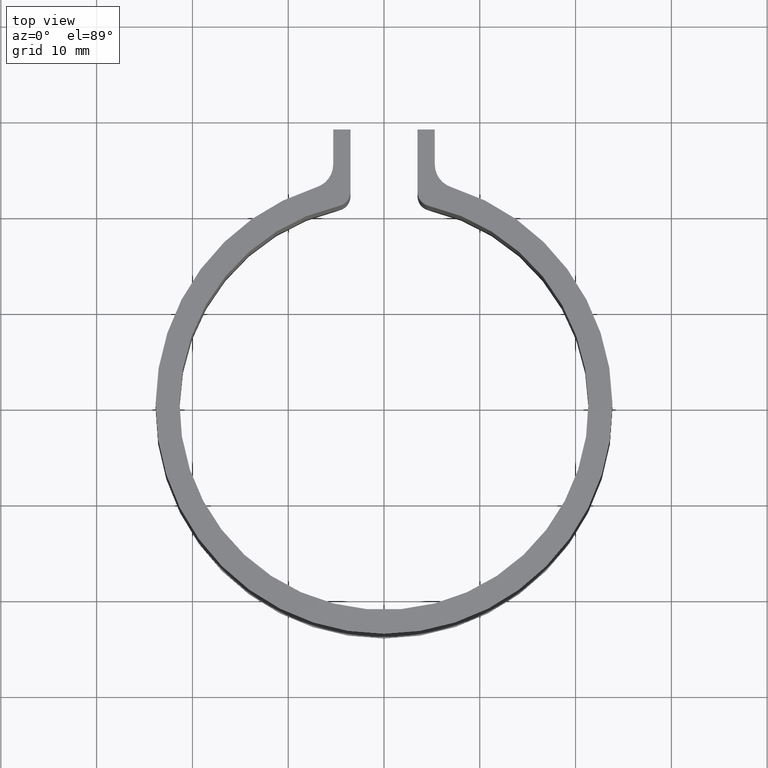
[diagram: clean part render]
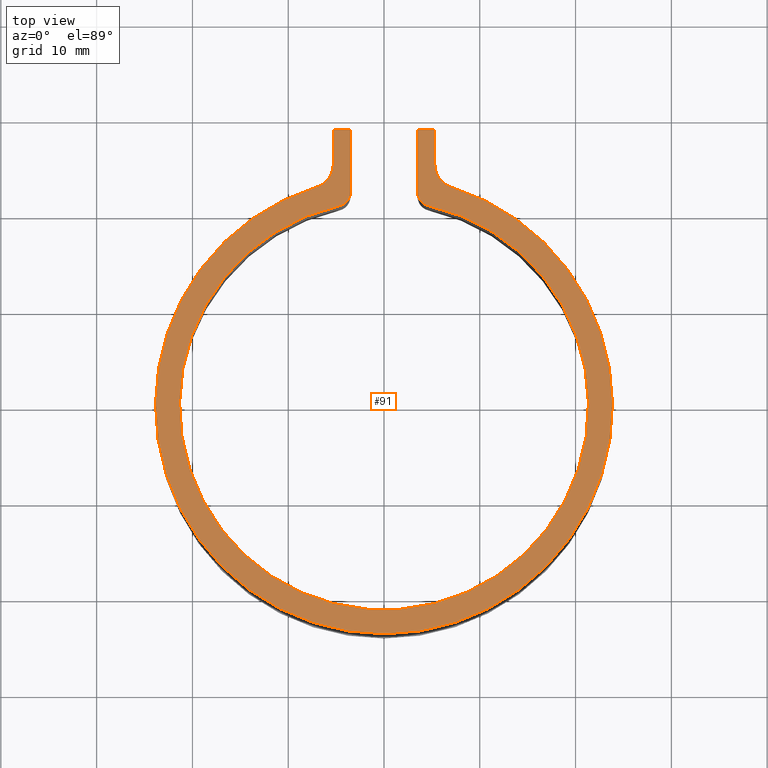
[diagram: same view with one face highlighted and labeled with its STEP entity id]
A machine part, top view. The second image highlights one B-rep face of the part: STEP entity #91.
In plain terms, the highlighted planar face has unit normal (0, 0, 1).
Its self-contained STEP definition (entity closure, byte-faithful):
#91 = ADVANCED_FACE( '', ( #134 ), #135, .T. );
#134 = FACE_OUTER_BOUND( '', #186, .T. );
#135 = PLANE( '', #187 );
#186 = EDGE_LOOP( '', ( #338, #339, #340, #341, #342, #343, #344, #345, #346, #347, #348, #349 ) );
#187 = AXIS2_PLACEMENT_3D( '', #350, #351, #352 );
#338 = ORIENTED_EDGE( '', *, *, #430, .T. );
#339 = ORIENTED_EDGE( '', *, *, #486, .T. );
#340 = ORIENTED_EDGE( '', *, *, #487, .T. );
#341 = ORIENTED_EDGE( '', *, *, #482, .T. );
#342 = ORIENTED_EDGE( '', *, *, #488, .T. );
#343 = ORIENTED_EDGE( '', *, *, #435, .T. );
#344 = ORIENTED_EDGE( '', *, *, #442, .T. );
#345 = ORIENTED_EDGE( '', *, *, #472, .T. );
#346 = ORIENTED_EDGE( '', *, *, #489, .T. );
#347 = ORIENTED_EDGE( '', *, *, #477, .T. );
#348 = ORIENTED_EDGE( '', *, *, #490, .T. );
#349 = ORIENTED_EDGE( '', *, *, #491, .T. );
#350 = CARTESIAN_POINT( '', ( 0.000000000000000, 2.08166817117217E-014, 1.50000000000000 ) );
#351 = DIRECTION( '', ( 0.000000000000000, 0.000000000000000, 1.00000000000000 ) );
#352 = DIRECTION( '', ( 0.000000000000000, 1.00000000000000, 0.000000000000000 ) );
#430 = EDGE_CURVE( '', #505, #503, #506, .T. );
#435 = EDGE_CURVE( '', #515, #513, #516, .T. );
#442 = EDGE_CURVE( '', #513, #526, #528, .T. );
#472 = EDGE_CURVE( '', #526, #579, #580, .F. );
#477 = EDGE_CURVE( '', #587, #588, #589, .F. );
#482 = EDGE_CURVE( '', #597, #595, #598, .T. );
#486 = EDGE_CURVE( '', #503, #602, #604, .T. );
#487 = EDGE_CURVE( '', #602, #597, #605, .T. );
#488 = EDGE_CURVE( '', #595, #515, #606, .T. );
#489 = EDGE_CURVE( '', #579, #587, #607, .T. );
#490 = EDGE_CURVE( '', #588, #608, #609, .T. );
#491 = EDGE_CURVE( '', #608, #505, #610, .T. );
#503 = VERTEX_POINT( '', #624 );
#505 = VERTEX_POINT( '', #627 );
#506 = LINE( '', #628, #629 );
#513 = VERTEX_POINT( '', #639 );
#515 = VERTEX_POINT( '', #642 );
#516 = LINE( '', #643, #644 );
#526 = VERTEX_POINT( '', #659 );
#528 = LINE( '', #662, #663 );
#579 = VERTEX_POINT( '', #730 );
#580 = CIRCLE( '', #731, 2.50000000000000 );
#587 = VERTEX_POINT( '', #741 );
#588 = VERTEX_POINT( '', #742 );
#589 = CIRCLE( '', #743, 2.50000000000000 );
#595 = VERTEX_POINT( '', #751 );
#597 = VERTEX_POINT( '', #754 );
#598 = CIRCLE( '', #755, 1.50000000000000 );
#602 = VERTEX_POINT( '', #760 );
#604 = CIRCLE( '', #763, 1.50000000000000 );
#605 = CIRCLE( '', #764, 21.3500000000000 );
#606 = LINE( '', #765, #766 );
#607 = CIRCLE( '', #767, 23.8500000000000 );
#608 = VERTEX_POINT( '', #768 );
#609 = LINE( '', #769, #770 );
#610 = LINE( '', #771, #772 );
#624 = CARTESIAN_POINT( '', ( 3.50000000000000, 22.2962440783196, 1.50000000000000 ) );
#627 = CARTESIAN_POINT( '', ( 3.50000000000003, 28.8025110199728, 1.50000000000000 ) );
#628 = CARTESIAN_POINT( '', ( 3.50000000000000, 28.8025110199728, 1.50000000000000 ) );
#629 = VECTOR( '', #790, 1000.00000000000 );
#639 = CARTESIAN_POINT( '', ( -5.30000000000001, 28.8025110199728, 1.50000000000000 ) );
#642 = CARTESIAN_POINT( '', ( -3.50000000000000, 28.8025110199728, 1.50000000000000 ) );
#643 = CARTESIAN_POINT( '', ( -3.50000000000000, 28.8025110199728, 1.50000000000000 ) );
#644 = VECTOR( '', #795, 1000.00000000000 );
#659 = CARTESIAN_POINT( '', ( -5.30000000000000, 25.1690782509015, 1.50000000000000 ) );
#662 = CARTESIAN_POINT( '', ( -5.30000000000000, 28.8025110199728, 1.50000000000000 ) );
#663 = VECTOR( '', #802, 1000.00000000000 );
#730 = CARTESIAN_POINT( '', ( -7.05996204933587, 22.7811201625806, 1.50000000000000 ) );
#731 = AXIS2_PLACEMENT_3D( '', #858, #859, #860 );
#741 = CARTESIAN_POINT( '', ( 7.05996204933587, 22.7811201625806, 1.50000000000000 ) );
#742 = CARTESIAN_POINT( '', ( 5.30000000000000, 25.1690782509015, 1.50000000000000 ) );
#743 = AXIS2_PLACEMENT_3D( '', #867, #868, #869 );
#751 = CARTESIAN_POINT( '', ( -3.50000000000000, 22.2962440783196, 1.50000000000000 ) );
#754 = CARTESIAN_POINT( '', ( -4.67177242888403, 20.8325956705524, 1.50000000000000 ) );
#755 = AXIS2_PLACEMENT_3D( '', #876, #877, #878 );
#760 = CARTESIAN_POINT( '', ( 4.67177242888403, 20.8325956705524, 1.50000000000000 ) );
#763 = AXIS2_PLACEMENT_3D( '', #884, #885, #886 );
#764 = AXIS2_PLACEMENT_3D( '', #887, #888, #889 );
#765 = CARTESIAN_POINT( '', ( -3.50000000000000, 21.0611609366626, 1.50000000000000 ) );
#766 = VECTOR( '', #890, 1000.00000000000 );
#767 = AXIS2_PLACEMENT_3D( '', #891, #892, #893 );
#768 = CARTESIAN_POINT( '', ( 5.30000000000000, 28.8025110199728, 1.50000000000000 ) );
#769 = CARTESIAN_POINT( '', ( 5.30000000000000, 23.2536556265891, 1.50000000000000 ) );
#770 = VECTOR( '', #894, 1000.00000000000 );
#771 = CARTESIAN_POINT( '', ( 5.30000000000003, 28.8025110199728, 1.50000000000000 ) );
#772 = VECTOR( '', #895, 1000.00000000000 );
#790 = DIRECTION( '', ( -6.12303176911189E-017, -1.00000000000000, 0.000000000000000 ) );
#795 = DIRECTION( '', ( -1.00000000000000, 0.000000000000000, 0.000000000000000 ) );
#802 = DIRECTION( '', ( -6.12303176911189E-017, -1.00000000000000, 0.000000000000000 ) );
#858 = CARTESIAN_POINT( '', ( -7.80000000000000, 25.1690782509015, 1.50000000000000 ) );
#859 = DIRECTION( '', ( 0.000000000000000, 0.000000000000000, 1.00000000000000 ) );
#860 = DIRECTION( '', ( 1.00000000000000, 0.000000000000000, 0.000000000000000 ) );
#867 = CARTESIAN_POINT( '', ( 7.80000000000001, 25.1690782509015, 1.50000000000000 ) );
#868 = DIRECTION( '', ( 0.000000000000000, 0.000000000000000, 1.00000000000000 ) );
#869 = DIRECTION( '', ( 1.00000000000000, 0.000000000000000, 0.000000000000000 ) );
#876 = CARTESIAN_POINT( '', ( -5.00000000000001, 22.2962440783196, 1.50000000000000 ) );
#877 = DIRECTION( '', ( 0.000000000000000, 0.000000000000000, 1.00000000000000 ) );
#878 = DIRECTION( '', ( 1.00000000000000, 0.000000000000000, 0.000000000000000 ) );
#884 = CARTESIAN_POINT( '', ( 5.00000000000001, 22.2962440783196, 1.50000000000000 ) );
#885 = DIRECTION( '', ( 0.000000000000000, 0.000000000000000, 1.00000000000000 ) );
#886 = DIRECTION( '', ( 1.00000000000000, 0.000000000000000, 0.000000000000000 ) );
#887 = CARTESIAN_POINT( '', ( 0.000000000000000, 2.08166817117217E-014, 1.50000000000000 ) );
#888 = DIRECTION( '', ( 0.000000000000000, 0.000000000000000, -1.00000000000000 ) );
#889 = DIRECTION( '', ( 1.00000000000000, 0.000000000000000, 0.000000000000000 ) );
#890 = DIRECTION( '', ( 6.12303176911189E-017, 1.00000000000000, 0.000000000000000 ) );
#891 = CARTESIAN_POINT( '', ( 0.000000000000000, 2.08166817117217E-014, 1.50000000000000 ) );
#892 = DIRECTION( '', ( 0.000000000000000, 0.000000000000000, 1.00000000000000 ) );
#893 = DIRECTION( '', ( 1.00000000000000, 0.000000000000000, 0.000000000000000 ) );
#894 = DIRECTION( '', ( 6.12303176911189E-017, 1.00000000000000, 0.000000000000000 ) );
#895 = DIRECTION( '', ( -1.00000000000000, 0.000000000000000, 0.000000000000000 ) );